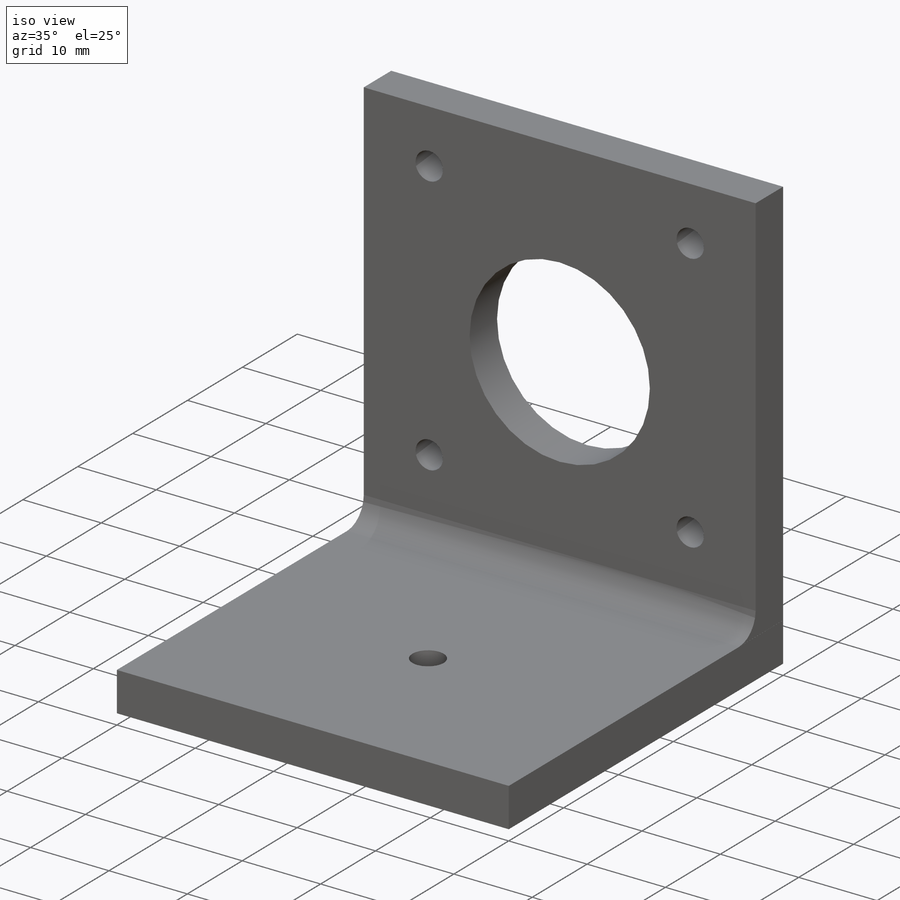
[diagram: iso view]
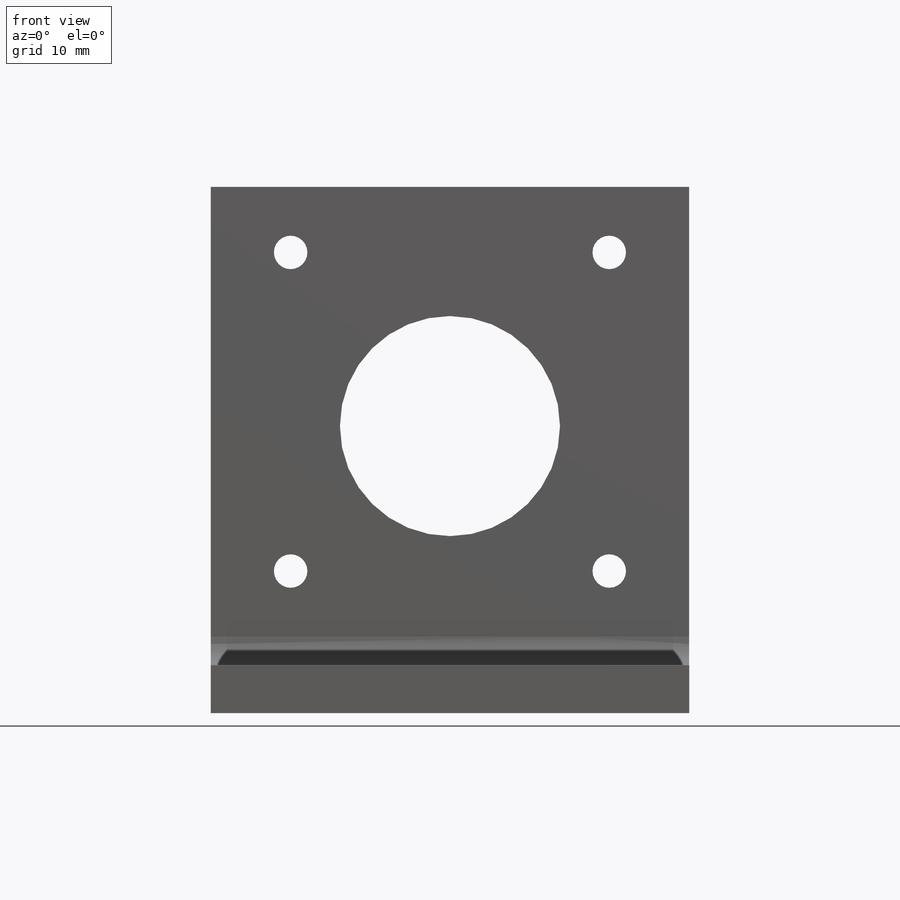
[diagram: front view]
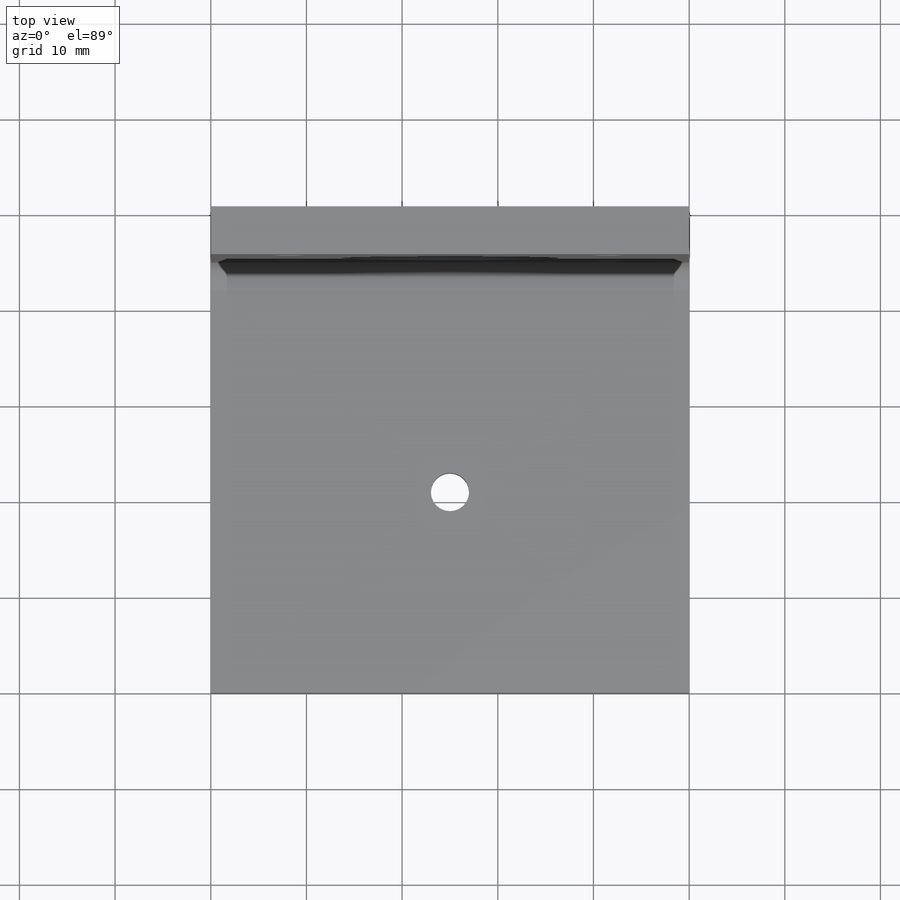
[diagram: top view]
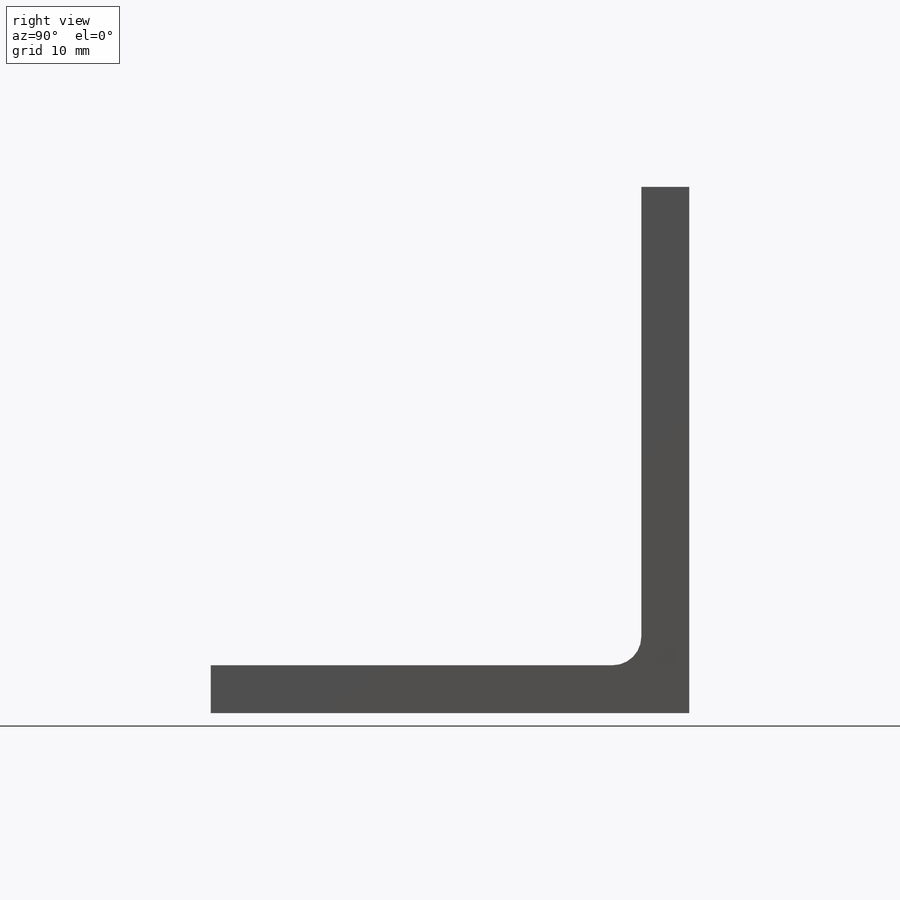
[diagram: right view]
SOLIDWORKS PART (.sldprt)
format: sldprt  version: not decoded by parser v0  size: 210,432 bytes
history: native  units: mm
features: sketch x5, plane x3, cut_extrude x3, extrude x2, material x1, fillet x1 (+10 scaffold rows collapsed)
feature tree (25):
  scaffold x10  (default folders/planes/origin — collapsed)
  material  "Material <não especificado>"
  plane  "Plano frontal"
  plane  "Plano superior"
  plane  "Plano direito"
  sketch  "Esboço1"  dims[D1=50.0mm D2=50.0mm]
  extrude  "Ressalto-extrusão1"  Depth=5mm
  sketch  "Esboço2"  dims[D1=23.0mm]
  cut_extrude  "Corte-extrusão1"  Depth=8mm
  sketch  "Esboço3"  dims[D1=5.0mm]
  extrude  "Ressalto-extrusão2"  Depth=50mm
  fillet  "Filete1"  Radius=3mm
  sketch  "Esboço4"  dims[c1.D4=3.5mm c1.D5=3.5mm c1.D6=3.5mm c1.D7=3.5mm c1.D1=16.65mm c1.D2=16.65mm c1.D3=31.302mm c2.D1=33.3mm c2.D2=16.65mm c2.D3=16.65mm]
  cut_extrude  "Corte-extrusão2"  Depth=11mm
  sketch  "Esboço5"  dims[D1=4.0mm]
  cut_extrude  "Corte-extrusão4"  Depth=14mm
decode coverage: 11 of 11 modeling features carry decoded parameters
note: suppression state not decoded; provenance and decode notes live in map.json
